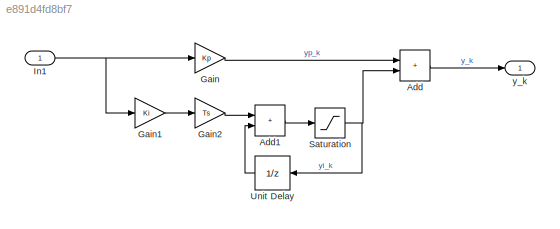
MODEL slx_e891d4fd8bf7
KIND model
CONFIG AbsTol = auto
CONFIG EnableMultiTasking = off
CONFIG FixedStep = auto
CONFIG MaxStep = auto
CONFIG MinStep = auto
CONFIG PostLoadFcn = a = -3;\nb = -4;\nKp = 36;\nKi = 4;\nm = 25;\nt = [0:0.01:10]';\nTs = 0.01;\nstin = [zeros(floor((length(t)/2)+1),1) ; 5*ones(floor(length(t)/2),1)];\n
CONFIG RelTol = 1e-3
CONFIG SampleTimeConstraint = Unconstrained
CONFIG Solver = VariableStepAuto
CONFIG SolverName = VariableStepAuto
CONFIG StartTime = 0.0
CONFIG StopTime = 10.0
WORKSPACE source: mxarray member
WORKSPACE Var = 0
BLOCK [Sum] Add
  IconShape = rectangular
  Ports = [2, 1]
BLOCK [Sum] Add1
  IconShape = rectangular
  Ports = [2, 1]
BLOCK [Gain] Gain
  Gain = Kp
BLOCK [Gain] Gain1
  Gain = Ki
BLOCK [Gain] Gain2
  Gain = Ts
BLOCK [Inport] In1
  OutDataTypeStr = double
  PortDimensions = 1
  SampleTime = 0
  SamplingMode = Sample based
  SignalType = real
BLOCK [Saturate] Saturation
  LowerLimit = -0.1
  UpperLimit = 0.1
BLOCK [UnitDelay] Unit Delay
  HasFrameUpgradeWarning = on
  NameLocation = top
  SampleTime = -1
BLOCK [Outport] y_k
  OutDataTypeStr = double
  PortDimensions = 1
  SampleTime = 0
  SamplingMode = Sample based
  SignalType = real
LINE Add1:1 -> Saturation:1
LINE Add:1 -> y_k:1
LINE Gain1:1 -> Gain2:1
LINE Gain2:1 -> Add1:1
LINE Gain:1 -> Add:1
NET In1:1 -> Gain1:1, Gain:1
NET Saturation:1 -> Add:2, Unit Delay:1
LINE Unit Delay:1 -> Add1:2
note: NET lines group one-source signal fan-out (src -> all destinations, sorted); 1:1 wires keep LINE
